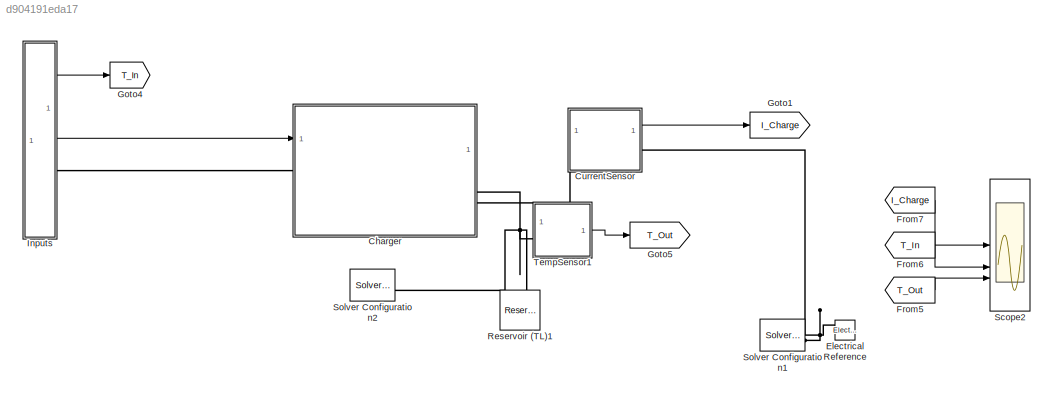
MODEL slx_d904191eda17
KIND model
CONFIG AbsTol = auto
CONFIG EnableMultiTasking = off
CONFIG FixedStep = auto
CONFIG MaxStep = auto
CONFIG MinStep = auto
CONFIG PreLoadFcn = ChargerTestHarnessParams;
CONFIG RelTol = 1e-3
CONFIG SampleTimeConstraint = Unconstrained
CONFIG SolverName = VariableStepAuto
CONFIG StartTime = 0.0
CONFIG StopTime = 1200
BLOCK [SubSystem] Charger
  PortSchema = {"entries":[{"content":{"sides":[{"content":{"connectorIds":["In1","LConn1"]},"type":"ConnectorPlacement.EquallySpacedRectSide","uuid":"ad49d76b-0429-4e4a-905a-69d100bc2133"},{"content":{"connectorIds":["LConn2","RConn1"],"side":"RIGHT"},"type":"ConnectorPlacement.EquallySpacedRectSide","uuid":"8491e872-c861-46a9-a473-a3bf4a821109"},{"content":{"side":"TOP"},"type":"ConnectorPlacement.EquallySpace...<+242ch>
  ReferencedSubsystem = ChargerThermal
  VariantControl = Driveline == 1
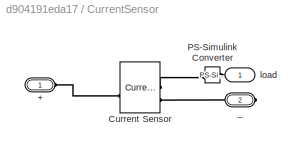
BLOCK [SubSystem] CurrentSensor
BLOCK [PMIOPort] CurrentSensor/+
  Side = Left
BLOCK [Reference] CurrentSensor/Current Sensor  REF=fl_lib/Electrical/Electrical Sensors/Current Sensor
  SourceBlock = fl_lib/Electrical/Electrical Sensors/Current Sensor
  SourceType = Current Sensor
BLOCK [Reference] CurrentSensor/PS-Simulink Converter  REF=nesl_utility/PS-Simulink
Converter
  SourceBlock = nesl_utility/PS-Simulink\nConverter
  SourceType = PS-Simulink\nConverter
BLOCK [PMIOPort] CurrentSensor/_
  Port = 2
  Side = Right
BLOCK [Outport] CurrentSensor/load
BLOCK [Reference] Electrical Reference  REF=fl_lib/Electrical/Electrical Elements/Electrical Reference
  NameLocation = right
  SourceBlock = fl_lib/Electrical/Electrical Elements/Electrical Reference
  SourceType = Electrical Reference
BLOCK [From] From5
  GotoTag = T_Out
BLOCK [From] From6
  GotoTag = T_In
BLOCK [From] From7
  GotoTag = I_Charge
BLOCK [Goto] Goto1
  GotoTag = I_Charge
BLOCK [Goto] Goto4
  GotoTag = T_In
BLOCK [Goto] Goto5
  GotoTag = T_Out
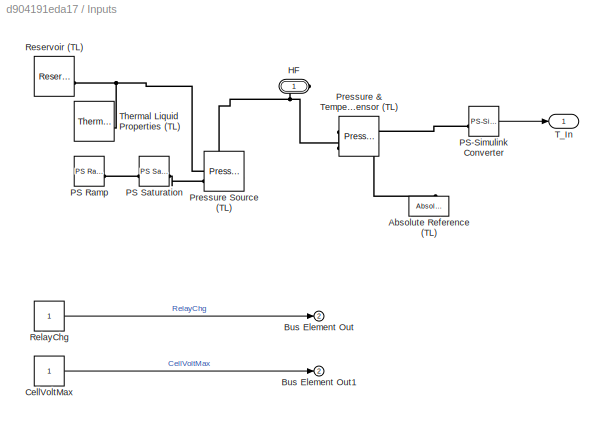
BLOCK [SubSystem] Inputs
BLOCK [Reference] Inputs/Absolute Reference (TL)  REF=fl_lib/Thermal Liquid/Elements/Absolute Reference
(TL)
  NameLocation = right
  SourceBlock = fl_lib/Thermal Liquid/Elements/Absolute Reference\n(TL)
  SourceType = Absolute Reference\n(TL)
BLOCK [Outport] Inputs/Bus Element Out
  Port = 2
BLOCK [Outport] Inputs/Bus Element Out1
  Port = 2
BLOCK [Constant] Inputs/CellVoltMax
BLOCK [PMIOPort] Inputs/HF
  Side = Right
BLOCK [Reference] Inputs/PS Ramp  REF=fl_lib/Physical Signals/Sources/PS Ramp
  SourceBlock = fl_lib/Physical Signals/Sources/PS Ramp
  SourceType = PS Ramp
BLOCK [Reference] Inputs/PS Saturation  REF=fl_lib/Physical Signals/Nonlinear Operators/PS Saturation
  SourceBlock = fl_lib/Physical Signals/Nonlinear Operators/PS Saturation
  SourceType = PS Saturation
BLOCK [Reference] Inputs/PS-Simulink Converter  REF=nesl_utility/PS-Simulink
Converter
  SourceBlock = nesl_utility/PS-Simulink\nConverter
  SourceType = PS-Simulink\nConverter
BLOCK [Reference] Inputs/Pressure & Temperature Sensor (TL)  REF=fl_lib/Thermal Liquid/Sensors/Pressure &
Temperature Sensor
(TL)
  SourceBlock = fl_lib/Thermal Liquid/Sensors/Pressure &\nTemperature Sensor\n(TL)
  SourceType = Pressure &\nTemperature Sensor\n(TL)
BLOCK [Reference] Inputs/Pressure Source (TL)  REF=fl_lib/Thermal Liquid/Sources/Pressure Source (TL)
  SourceBlock = fl_lib/Thermal Liquid/Sources/Pressure Source (TL)
  SourceType = Pressure Source (TL)
BLOCK [Constant] Inputs/RelayChg
BLOCK [Reference] Inputs/Reservoir (TL)  REF=fl_lib/Thermal Liquid/Elements/Reservoir (TL)
  SourceBlock = fl_lib/Thermal Liquid/Elements/Reservoir (TL)
  SourceType = Reservoir (TL)
BLOCK [Outport] Inputs/T_In
BLOCK [Reference] Inputs/Thermal Liquid Properties (TL)  REF=SimscapeFluids_lib/Thermal Liquid/Utilities/Thermal Liquid
Properties (TL)
  SourceBlock = SimscapeFluids_lib/Thermal Liquid/Utilities/Thermal Liquid\nProperties (TL)
  SourceType = Thermal Liquid\nProperties (TL)
BLOCK [Reference] Reservoir (TL)1  REF=fl_lib/Thermal Liquid/Elements/Reservoir (TL)
  NameLocation = right
  SourceBlock = fl_lib/Thermal Liquid/Elements/Reservoir (TL)
  SourceType = Reservoir (TL)
BLOCK [Scope] Scope2
  Floating = off
  NumInputPorts = 3
  ScopeSpecificationString = Simulink.scopes.TimeScopeBlockCfg('CurrentConfiguration', extmgr.ConfigurationSet(extmgr.Configuration('Core','General UI',true),extmgr.Configuration('Core','Source UI',true),extmgr.Configuration('Sources','WiredSimulink',true,'DataLoggingVariableName','ScopeData2'),extmgr.Configuration('Visuals','Time Domain',true,'SerializedDisplays',{struct('MinYLimReal','-6.25016','MaxYLimReal','56.25141','YLa...<+2278ch>
BLOCK [Reference] Solver Configuration1  REF=nesl_utility/Solver
Configuration
  SourceBlock = nesl_utility/Solver\nConfiguration
  SourceType = Solver\nConfiguration
BLOCK [Reference] Solver Configuration2  REF=nesl_utility/Solver
Configuration
  SourceBlock = nesl_utility/Solver\nConfiguration
  SourceType = Solver\nConfiguration
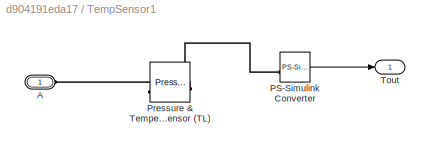
BLOCK [SubSystem] TempSensor1
BLOCK [PMIOPort] TempSensor1/A
  Side = Left
BLOCK [Reference] TempSensor1/PS-Simulink Converter  REF=nesl_utility/PS-Simulink
Converter
  SourceBlock = nesl_utility/PS-Simulink\nConverter
  SourceType = PS-Simulink\nConverter
BLOCK [Reference] TempSensor1/Pressure & Temperature Sensor (TL)  REF=fl_lib/Thermal Liquid/Sensors/Pressure &
Temperature Sensor
(TL)
  SourceBlock = fl_lib/Thermal Liquid/Sensors/Pressure &\nTemperature Sensor\n(TL)
  SourceType = Pressure &\nTemperature Sensor\n(TL)
BLOCK [Outport] TempSensor1/Tout
LINE CurrentSensor/PS-Simulink Converter:1 -> CurrentSensor/load:1
LINE CurrentSensor:1 -> Goto1:1
LINE From5:1 -> Scope2:3
LINE From6:1 -> Scope2:2
LINE From7:1 -> Scope2:1
LINE Inputs/CellVoltMax:1 -> Inputs/Bus Element Out1:1
LINE Inputs/PS-Simulink Converter:1 -> Inputs/T_In:1
LINE Inputs/RelayChg:1 -> Inputs/Bus Element Out:1
LINE Inputs:1 -> Goto4:1
LINE Inputs:2 -> Charger:1
LINE TempSensor1/PS-Simulink Converter:1 -> TempSensor1/Tout:1
LINE TempSensor1:1 -> Goto5:1
PLINE Charger:LConn1 -- Inputs:RConn1
PLINE Charger:LConn2 -- CurrentSensor:LConn1
PNET net1: Charger:RConn1 -- Reservoir (TL)1:LConn1 -- Solver Configuration2:RConn1 -- TempSensor1:LConn1
PLINE CurrentSensor/+:RConn1 -- CurrentSensor/Current Sensor:LConn1
PLINE CurrentSensor/Current Sensor:RConn1 -- CurrentSensor/PS-Simulink Converter:LConn1
PLINE CurrentSensor/Current Sensor:RConn2 -- CurrentSensor/_:RConn1
PNET net2: CurrentSensor:RConn1 -- Electrical Reference:LConn1 -- Solver Configuration1:RConn1
PLINE Inputs/Absolute Reference (TL):LConn1 -- Inputs/Pressure & Temperature Sensor (TL):RConn1
PNET net3: Inputs/HF:RConn1 -- Inputs/Pressure & Temperature Sensor (TL):LConn1 -- Inputs/Pressure Source (TL):RConn1
PLINE Inputs/PS Ramp:RConn1 -- Inputs/PS Saturation:LConn1
PLINE Inputs/PS Saturation:RConn1 -- Inputs/Pressure Source (TL):LConn2
PLINE Inputs/PS-Simulink Converter:LConn1 -- Inputs/Pressure & Temperature Sensor (TL):RConn3
PNET net4: Inputs/Pressure Source (TL):LConn1 -- Inputs/Reservoir (TL):LConn1 -- Inputs/Thermal Liquid Properties (TL):RConn1
PLINE TempSensor1/A:RConn1 -- TempSensor1/Pressure & Temperature Sensor (TL):LConn1
PLINE TempSensor1/PS-Simulink Converter:LConn1 -- TempSensor1/Pressure & Temperature Sensor (TL):RConn2
note: PNET lines group multi-terminal physical nets as a canonical sorted terminal list (undirected conserving connections); 2-terminal nets keep the pairwise PLINE form
